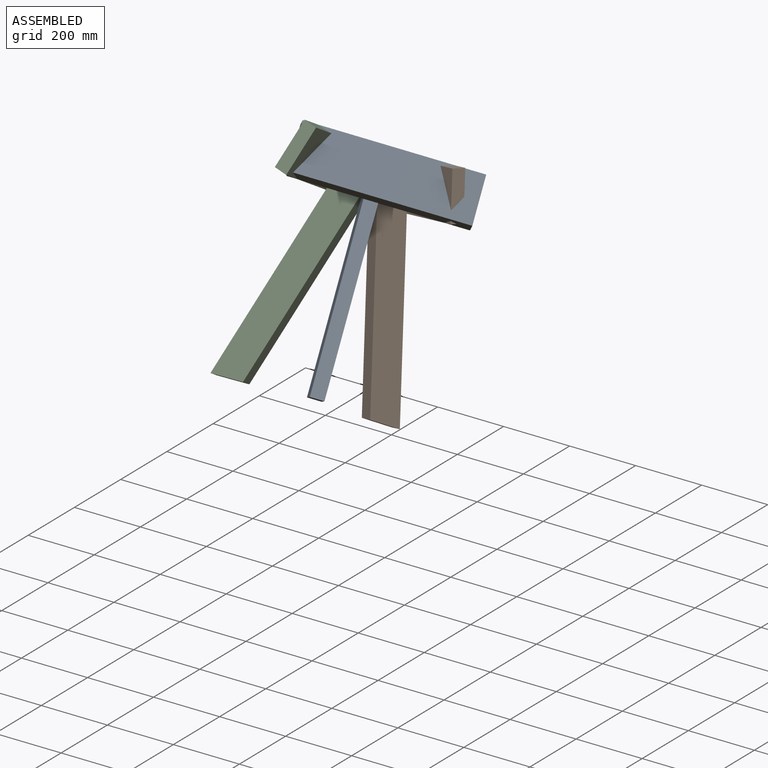
[diagram: assembled view]
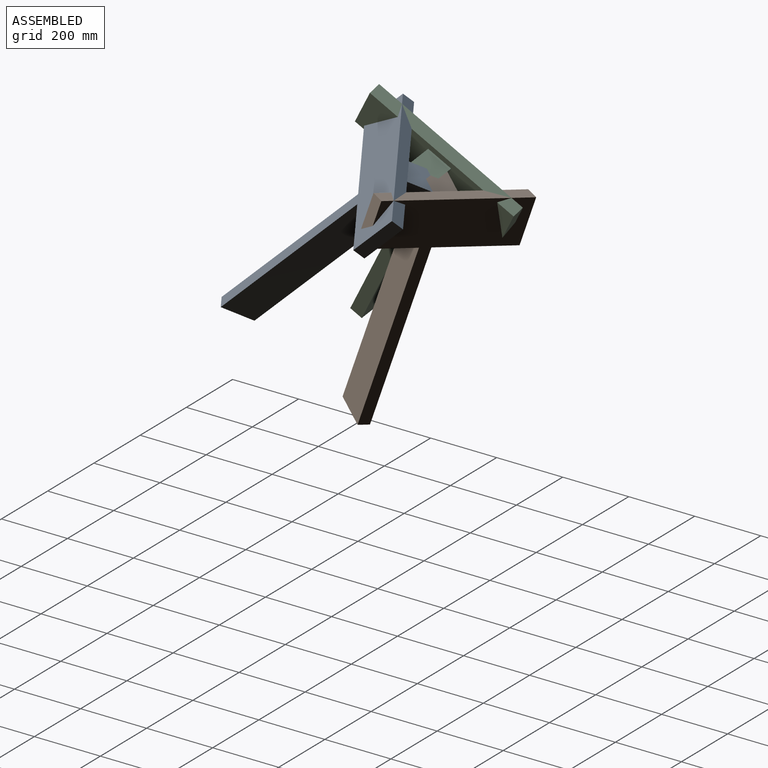
[diagram: assembled view, second angle]
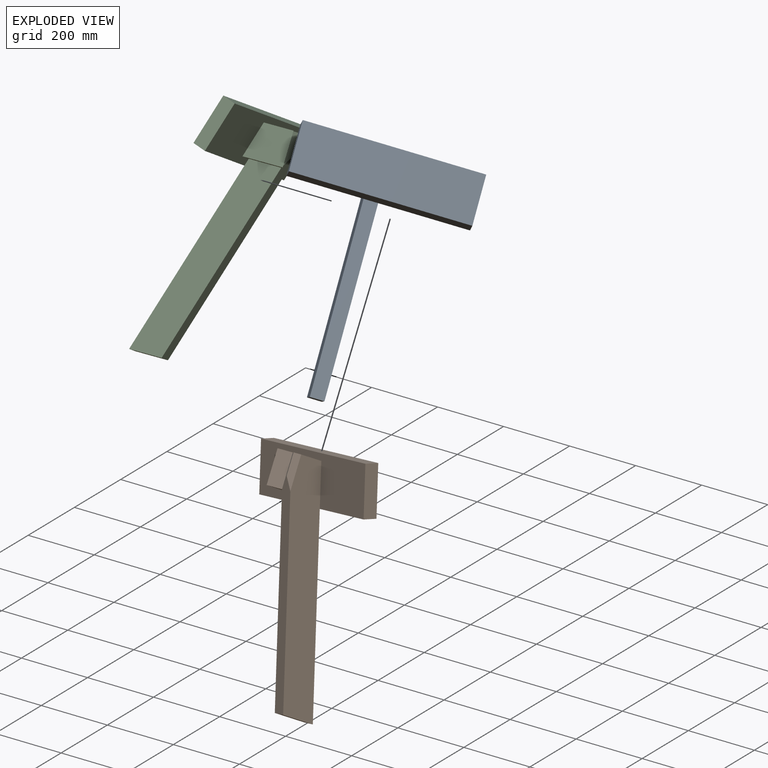
[diagram: exploded view]
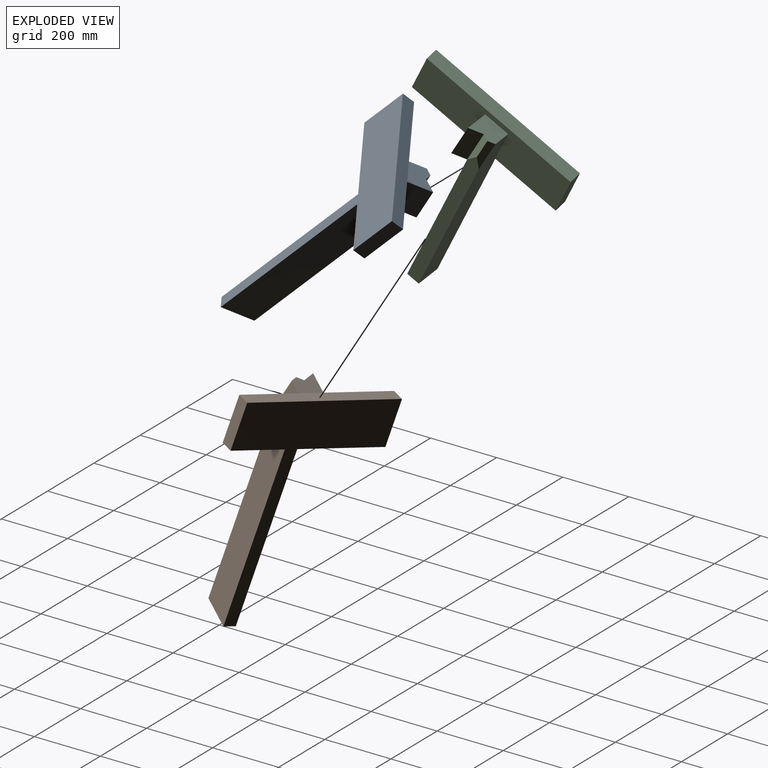
[diagram: exploded view, second angle]
ASSEMBLY  parts=3 mates=5
PART A: 17 faces, bbox 148x476.2x686 mm
  f0: plane 540.05x38.1mm, normal (-1,0,0), area 20576.1mm2, adj f3,f4,f8,f14
  f1: plane 109.88x38.1mm, normal (0.3,0,-0.95), area 3970.5mm2, adj f4,f9,f10,f11
  f2: plane 81.22x76.2mm, normal (-0.3,0,0.95), area 5441.8mm2, adj f3,f6,f7,f9,f10,f11
  f3: plane 679.39x88.9mm, normal (0,1,0), area 57277.7mm2, adj f0,f2,f5,f7,f8,f11
  f4: plane 588.5x88.9mm, normal (0,-1,0), area 49826.1mm2, adj f0,f1,f5,f8,f11
  f5: plane 597.05x38.1mm, normal (1,0,0), area 22050.8mm2, adj f3,f4,f6,f7,f8
  f6: plane 94.2x28.66mm, normal (0.83,-0.5,0.26), area 1712.7mm2, adj f2,f5,f7,f10
  f7: plane 94.2x28.66mm, normal (0.83,0.5,0.26), area 1712.7mm2, adj f2,f3,f5,f6
  f8: plane 88.9x38.1mm, normal (0.3,0,-0.95), area 3551.5mm2, adj f0,f3,f4,f5
  f9: plane 125.54x109.88mm, normal (0,-1,0), area 9548mm2, adj f1,f2,f10,f11
  f10: plane 97.51x49.64mm, normal (0.83,0.5,0.26), area 4192.7mm2, adj f1,f2,f6,f9
  f11: plane 476.24x139.7mm, normal (1,0,0), area 58138.3mm2, adj f1,f2,f3,f4,f9,f12,f13,f14
  f12: plane 476.24x38.1mm, normal (0,0,1), area 18144.7mm2, adj f11,f13,f15,f16
  f13: plane 139.7x38.1mm, normal (0,1,0), area 5322.6mm2, adj f11,f12,f14,f16
  f14: plane 476.24x38.1mm, normal (0,0,-1), area 18144.7mm2, adj f0,f11,f13,f15,f16
  f15: plane 139.7x38.1mm, normal (0,-1,0), area 5322.6mm2, adj f11,f12,f14,f16
  f16: plane 476.24x139.7mm, normal (-1,0,0), area 66530.7mm2, adj f12,f13,f14,f15
PART B: same geometry as A
PART C: same geometry as A
PLACE A rot(axis=(-0.28,0.33,0.9),132.9deg) t=(348.3,131.46,643.61)mm
PLACE B rot(axis=(-0.02,-0.18,-0.98),113.2deg) t=(362.89,303.71,539.3)mm
PLACE C rot(axis=(-0.88,0.48,0.02),36.4deg) t=(181.24,226.72,582.15)mm
MATE planar B.f7 <-> A.f6  axis (0.09,-0.85,0.52) through (304.86,345.07,791.14)mm
MATE planar C.f6 <-> A.f7  axis (0.91,-0.35,0.23) through (288.15,334.81,797.01)mm
MATE planar C.f7 <-> B.f6  axis (0.82,0.5,-0.29) through (286.27,352.22,786.4)mm
MATE planar C.f2 <-> B.f2  axis (-0.02,0.52,0.85) through (256.17,343.98,837.07)mm
MATE planar C.f2 <-> A.f2  axis (-0.02,0.52,0.85) through (256.17,343.98,837.07)mm
